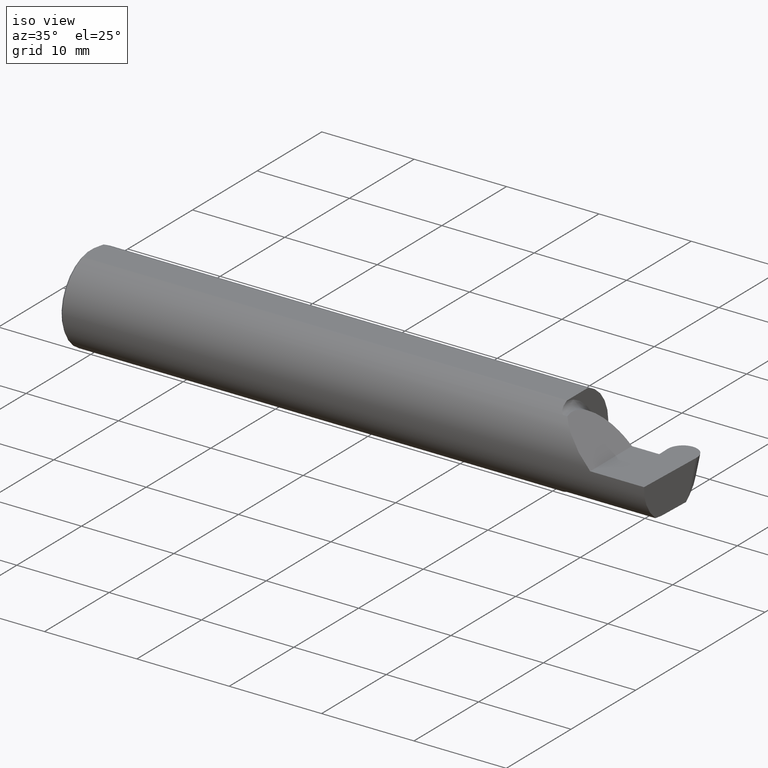
[diagram: clean part render]
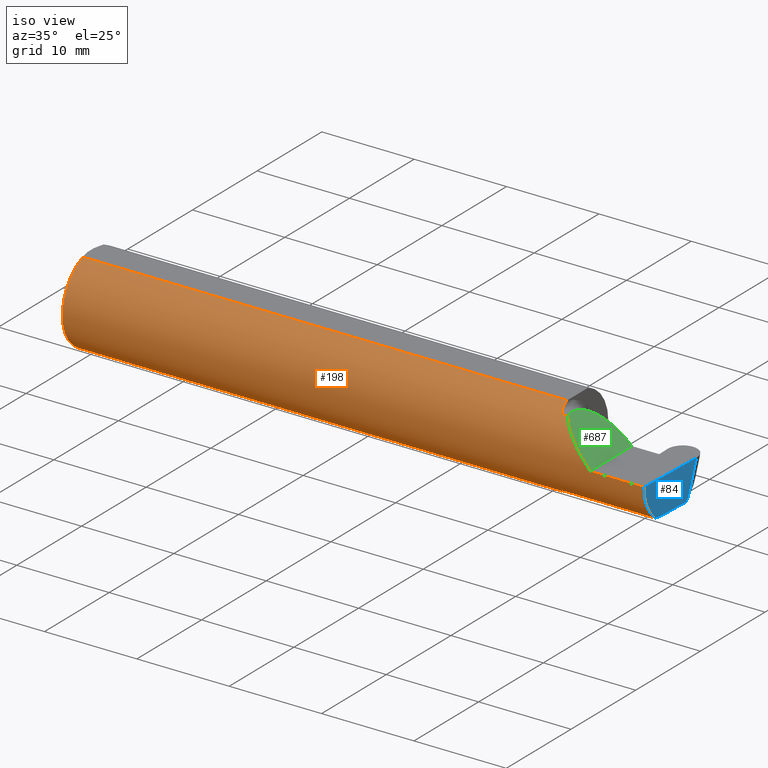
[diagram: same view with three faces highlighted in distinct colors, each labeled with its STEP entity id]
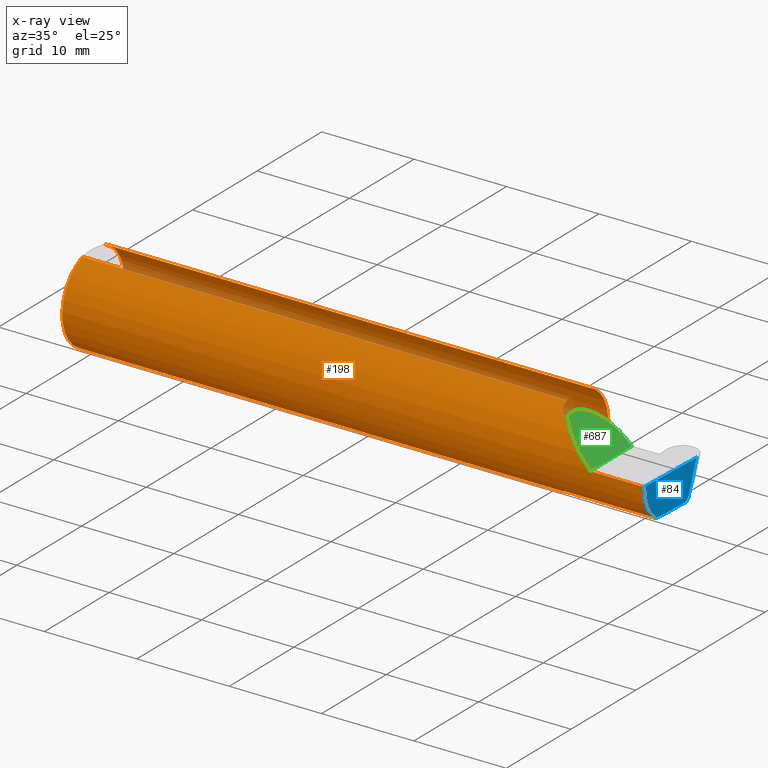
[diagram: x-ray of the same camera — body ghosted, the three highlighted faces saturated]
A machine part, iso view with three faces highlighted in distinct colors.
The next image is the same camera in x-ray (body ghosted, the three faces saturated) — at least one of them is partly hidden behind the body in this view.
Their STEP definitions:

[orange] entity #198 — the highlighted cylindrical surface (partial cylindrical patch) has radius 4.7587 mm, axis along (-1, -0, -0).
#3 = VERTEX_POINT ( 'NONE', #136 ) ;
#4 = CARTESIAN_POINT ( 'NONE',  ( 0.009999999999999346217, 0.06325108694718235836, 0.1763499999999999235 ) ) ;
#7 = EDGE_CURVE ( 'NONE', #3, #99, #193, .T. ) ;
#15 = LINE ( 'NONE', #433, #77 ) ;
#23 = CYLINDRICAL_SURFACE ( 'NONE', #656, 0.1873499999999999888 ) ;
#30 = CARTESIAN_POINT ( 'NONE',  ( 2.113883229301068312, -0.1172600179964004702, 0.1461167706989303927 ) ) ;
#33 = CARTESIAN_POINT ( 'NONE',  ( 2.100000000000000089, -0.1172600179964002620, -0.1461167706989305870 ) ) ;
#35 = EDGE_CURVE ( 'NONE', #542, #491, #694, .T. ) ;
#41 = CARTESIAN_POINT ( 'NONE',  ( 2.100000000000000089, -0.1172600179964002620, -0.1461167706989305870 ) ) ;
#46 = ORIENTED_EDGE ( 'NONE', *, *, #252, .F. ) ;
#55 = EDGE_CURVE ( 'NONE', #397, #206, #553, .T. ) ;
#58 = VERTEX_POINT ( 'NONE', #548 ) ;
#62 = CARTESIAN_POINT ( 'NONE',  ( 2.237361995000000103, -0.1172600179964005118, 0.1461167706989304482 ) ) ;
#65 = DIRECTION ( 'NONE',  ( 0.000000000000000000, 1.000000000000000000, 0.000000000000000000 ) ) ;
#67 = CARTESIAN_POINT ( 'NONE',  ( 2.083475602106621860, -0.1064978748893402188, 0.1542035505680386387 ) ) ;
#77 = VECTOR ( 'NONE', #213, 39.37007874015748143 ) ;
#81 = ORIENTED_EDGE ( 'NONE', *, *, #107, .F. ) ;
#86 = EDGE_CURVE ( 'NONE', #106, #491, #15, .T. ) ;
#95 = VERTEX_POINT ( 'NONE', #278 ) ;
#99 = VERTEX_POINT ( 'NONE', #390 ) ;
#106 = VERTEX_POINT ( 'NONE', #171 ) ;
#107 = EDGE_CURVE ( 'NONE', #391, #58, #161, .T. ) ;
#110 = CARTESIAN_POINT ( 'NONE',  ( 3.749399456654646757E-32, -0.1873499999999999610, 3.061616997868383634E-16 ) ) ;
#111 = ORIENTED_EDGE ( 'NONE', *, *, #7, .T. ) ;
#113 = DIRECTION ( 'NONE',  ( 1.000000000000000000, 3.417954624266474541E-16, 0.000000000000000000 ) ) ;
#115 = ORIENTED_EDGE ( 'NONE', *, *, #416, .F. ) ;
#119 = DIRECTION ( 'NONE',  ( 1.000000000000000000, 3.417954624266474541E-16, 0.000000000000000000 ) ) ;
#120 = CARTESIAN_POINT ( 'NONE',  ( 2.075000000000000178, -0.06851976604679038685, -0.1743704796142199753 ) ) ;
#123 = AXIS2_PLACEMENT_3D ( 'NONE', #589, #113, #65 ) ;
#129 = CARTESIAN_POINT ( 'NONE',  ( 2.090028532764138802, -0.1137241120808232947, -0.1488947809299406011 ) ) ;
#133 = CARTESIAN_POINT ( 'NONE',  ( 2.150065971957464850, -0.1623470442677541759, 0.1099340280425337851 ) ) ;
#136 = CARTESIAN_POINT ( 'NONE',  ( 2.260000000000000231, -0.1873499999999999888, 2.939152317953647352E-17 ) ) ;
#141 = CARTESIAN_POINT ( 'NONE',  ( 2.488225324098681579, -0.1873500000000000165, -0.05781030015605125721 ) ) ;
#158 = ORIENTED_EDGE ( 'NONE', *, *, #306, .T. ) ;
#159 = CARTESIAN_POINT ( 'NONE',  ( 2.075000000000000178, -0.06851976604679038685, 0.1743704796142199753 ) ) ;
#161 = B_SPLINE_CURVE_WITH_KNOTS ( 'NONE', 3,
 ( #671, #338, #223, #599, #544, #231, #67, #441, #180, #429, #484, #382 ),
 .UNSPECIFIED., .F., .F.,
 ( 4, 2, 2, 2, 2, 4 ),
 ( 4.423516731081017750E-05, 0.0004615475116586720055, 0.0008788598560065338404, 0.001296172200354395784, 0.001504828372528326701, 0.001713484544702257618 ),
 .UNSPECIFIED. ) ;
#171 = CARTESIAN_POINT ( 'NONE',  ( 2.075000000000000178, 0.06325108694718235836, 0.1763499999999999235 ) ) ;
#180 = CARTESIAN_POINT ( 'NONE',  ( 2.090004157323697598, -0.1137044537483313106, 0.1489098419202430912 ) ) ;
#181 = ORIENTED_EDGE ( 'NONE', *, *, #568, .F. ) ;
#183 = FACE_OUTER_BOUND ( 'NONE', #498, .T. ) ;
#189 = CARTESIAN_POINT ( 'NONE',  ( 0.009999999999999346217, -0.06325108694718235836, 0.1763499999999999235 ) ) ;
#193 =( BOUNDED_CURVE ( )  B_SPLINE_CURVE ( 3, ( #400, #615, #133, #30 ),
 .UNSPECIFIED., .F., .F. ) 
 B_SPLINE_CURVE_WITH_KNOTS ( ( 4, 4 ),
 ( 4.712388980384688786, 5.606916381293137519 ),
 .UNSPECIFIED. ) 
 CURVE ( )  GEOMETRIC_REPRESENTATION_ITEM ( )  RATIONAL_B_SPLINE_CURVE ( ( 1.000000000000000000, 0.9344226172588800949, 0.9344226172588800949, 1.000000000000000000 ) ) 
 REPRESENTATION_ITEM ( '' )  );
#198 = ADVANCED_FACE ( 'NONE', ( #183 ), #23, .T. ) ;
#205 = DIRECTION ( 'NONE',  ( -1.000000000000000000, -3.417954624266474541E-16, -0.000000000000000000 ) ) ;
#206 = VERTEX_POINT ( 'NONE', #511 ) ;
#213 = DIRECTION ( 'NONE',  ( -1.000000000000000000, -0.000000000000000000, -0.000000000000000000 ) ) ;
#216 = LINE ( 'NONE', #62, #557 ) ;
#223 = CARTESIAN_POINT ( 'NONE',  ( 2.075353553376444893, -0.07868116735658646499, 0.1701139256562801683 ) ) ;
#231 = CARTESIAN_POINT ( 'NONE',  ( 2.081287624083520527, -0.1021858045380142216, 0.1571187174372876694 ) ) ;
#241 = CARTESIAN_POINT ( 'NONE',  ( 0.009999999999999346217, 0.000000000000000000, 0.000000000000000000 ) ) ;
#244 = CARTESIAN_POINT ( 'NONE',  ( 2.097174967710399685, -0.1172600179964003730, -0.1461167706989306703 ) ) ;
#249 = LINE ( 'NONE', #315, #592 ) ;
#252 = EDGE_CURVE ( 'NONE', #287, #95, #401, .T. ) ;
#253 = ORIENTED_EDGE ( 'NONE', *, *, #326, .F. ) ;
#273 = DIRECTION ( 'NONE',  ( 0.000000000000000000, 0.000000000000000000, -1.000000000000000000 ) ) ;
#274 = CARTESIAN_POINT ( 'NONE',  ( 2.075358271039143609, -0.07873626113568053808, -0.1700887912276896896 ) ) ;
#278 = CARTESIAN_POINT ( 'NONE',  ( 2.075000000000000178, -0.06325108694718283020, 0.1763499999999999235 ) ) ;
#282 = ORIENTED_EDGE ( 'NONE', *, *, #594, .T. ) ;
#287 = VERTEX_POINT ( 'NONE', #189 ) ;
#289 = CARTESIAN_POINT ( 'NONE',  ( 2.081304331342287650, -0.1022198306720688427, -0.1570962426853819982 ) ) ;
#306 = EDGE_CURVE ( 'NONE', #585, #538, #667, .T. ) ;
#307 = CIRCLE ( 'NONE', #123, 0.1873499999999999888 ) ;
#313 = ORIENTED_EDGE ( 'NONE', *, *, #546, .F. ) ;
#315 = CARTESIAN_POINT ( 'NONE',  ( 2.237361995000000103, -0.1172600179964005118, -0.1461167706989304482 ) ) ;
#326 = EDGE_CURVE ( 'NONE', #585, #397, #249, .T. ) ;
#328 = AXIS2_PLACEMENT_3D ( 'NONE', #483, #492, #273 ) ;
#338 = CARTESIAN_POINT ( 'NONE',  ( 2.074999999999999289, -0.07367581953296672981, 0.1723443821957855726 ) ) ;
#342 = CARTESIAN_POINT ( 'NONE',  ( 2.083439486659306894, -0.1064616213911155906, -0.1542305641651502135 ) ) ;
#360 = CARTESIAN_POINT ( 'NONE',  ( 2.489235021721937002, -0.1873499999999999888, 0.000000000000000000 ) ) ;
#369 = ORIENTED_EDGE ( 'NONE', *, *, #35, .T. ) ;
#378 = LINE ( 'NONE', #110, #447 ) ;
#381 = CARTESIAN_POINT ( 'NONE',  ( 2.489235021721937002, -0.1873499999999999888, 0.000000000000000000 ) ) ;
#382 = CARTESIAN_POINT ( 'NONE',  ( 2.100000000000000089, -0.1172600179964003730, 0.1461167706989305592 ) ) ;
#390 = CARTESIAN_POINT ( 'NONE',  ( 2.113883229301068312, -0.1172600179964004702, 0.1461167706989303927 ) ) ;
#391 = VERTEX_POINT ( 'NONE', #159 ) ;
#392 = CARTESIAN_POINT ( 'NONE',  ( 2.489130585478359858, -0.1172600179964004286, -0.1461167706989304482 ) ) ;
#397 = VERTEX_POINT ( 'NONE', #41 ) ;
#399 = DIRECTION ( 'NONE',  ( -1.000000000000000000, -0.000000000000000000, -0.000000000000000000 ) ) ;
#400 = CARTESIAN_POINT ( 'NONE',  ( 2.260000000000000231, -0.1873499999999999888, 2.939152317953647352E-17 ) ) ;
#401 = LINE ( 'NONE', #514, #670 ) ;
#402 = DIRECTION ( 'NONE',  ( 0.000000000000000000, 0.000000000000000000, -1.000000000000000000 ) ) ;
#405 = DIRECTION ( 'NONE',  ( 0.000000000000000000, 0.000000000000000000, 1.000000000000000000 ) ) ;
#407 = DIRECTION ( 'NONE',  ( 1.000000000000000000, 0.000000000000000000, 0.000000000000000000 ) ) ;
#414 = AXIS2_PLACEMENT_3D ( 'NONE', #524, #515, #474 ) ;
#416 = EDGE_CURVE ( 'NONE', #206, #106, #467, .T. ) ;
#429 = CARTESIAN_POINT ( 'NONE',  ( 2.094481469043492528, -0.1163560528186162041, 0.1468472430636325876 ) ) ;
#433 = CARTESIAN_POINT ( 'NONE',  ( 0.000000000000000000, 0.06325108694718235836, 0.1763499999999999235 ) ) ;
#441 = CARTESIAN_POINT ( 'NONE',  ( 2.088163223656403389, -0.1119926267047273716, 0.1502091925606065526 ) ) ;
#444 = CARTESIAN_POINT ( 'NONE',  ( 2.088203859946834662, -0.1120371980050636068, -0.1501764597936561252 ) ) ;
#447 = VECTOR ( 'NONE', #547, 39.37007874015748143 ) ;
#448 = CARTESIAN_POINT ( 'NONE',  ( 0.000000000000000000, 0.000000000000000000, 0.000000000000000000 ) ) ;
#467 = CIRCLE ( 'NONE', #414, 0.1873499999999999888 ) ;
#474 = DIRECTION ( 'NONE',  ( 0.000000000000000000, 1.000000000000000000, 0.000000000000000000 ) ) ;
#480 = CARTESIAN_POINT ( 'NONE',  ( 2.074999999999999289, -0.07368234487347166684, -0.1723418180300748392 ) ) ;
#483 = CARTESIAN_POINT ( 'NONE',  ( 0.009999999999999346217, 0.000000000000000000, 0.000000000000000000 ) ) ;
#484 = CARTESIAN_POINT ( 'NONE',  ( 2.097161949849308371, -0.1172600179964057715, 0.1461167706989262571 ) ) ;
#489 = EDGE_CURVE ( 'NONE', #538, #3, #378, .T. ) ;
#491 = VERTEX_POINT ( 'NONE', #4 ) ;
#492 = DIRECTION ( 'NONE',  ( 1.000000000000000000, 0.000000000000000000, 0.000000000000000000 ) ) ;
#493 = CARTESIAN_POINT ( 'NONE',  ( 2.076843912362378752, -0.08846956905169063579, -0.1652353808078973751 ) ) ;
#498 = EDGE_LOOP ( 'NONE', ( #253, #158, #702, #111, #313, #81, #181, #46, #282, #369, #660, #115, #650 ) ) ;
#511 = CARTESIAN_POINT ( 'NONE',  ( 2.075000000000000178, -0.06851976604679038685, -0.1743704796142199753 ) ) ;
#514 = CARTESIAN_POINT ( 'NONE',  ( 0.000000000000000000, -0.06325108694718235836, 0.1763499999999999235 ) ) ;
#515 = DIRECTION ( 'NONE',  ( 1.000000000000000000, 3.417954624266474541E-16, 0.000000000000000000 ) ) ;
#524 = CARTESIAN_POINT ( 'NONE',  ( 2.075000000000000178, 0.000000000000000000, 0.000000000000000000 ) ) ;
#538 = VERTEX_POINT ( 'NONE', #381 ) ;
#542 = VERTEX_POINT ( 'NONE', #669 ) ;
#544 = CARTESIAN_POINT ( 'NONE',  ( 2.077945243422983701, -0.09312071749437392243, 0.1626553472577908221 ) ) ;
#546 = EDGE_CURVE ( 'NONE', #58, #99, #216, .T. ) ;
#547 = DIRECTION ( 'NONE',  ( -1.000000000000000000, -0.000000000000000000, -0.000000000000000000 ) ) ;
#548 = CARTESIAN_POINT ( 'NONE',  ( 2.100000000000000089, -0.1172600179964003730, 0.1461167706989305592 ) ) ;
#550 = CARTESIAN_POINT ( 'NONE',  ( 2.077960551809340473, -0.09317341542745719019, -0.1626248379125198873 ) ) ;
#553 = B_SPLINE_CURVE_WITH_KNOTS ( 'NONE', 3,
 ( #33, #244, #683, #129, #444, #342, #289, #550, #493, #274, #480, #120 ),
 .UNSPECIFIED., .F., .F.,
 ( 4, 2, 2, 2, 2, 4 ),
 ( 1.967976973658592312E-07, 0.0002120314145722270284, 0.0004238660314470881624, 0.0008475352651967977451, 0.001271204498946507328, 0.001694873732696217236 ),
 .UNSPECIFIED. ) ;
#557 = VECTOR ( 'NONE', #119, 39.37007874015748143 ) ;
#568 = EDGE_CURVE ( 'NONE', #95, #391, #307, .T. ) ;
#585 = VERTEX_POINT ( 'NONE', #392 ) ;
#589 = CARTESIAN_POINT ( 'NONE',  ( 2.075000000000000178, 0.000000000000000000, 0.000000000000000000 ) ) ;
#590 = AXIS2_PLACEMENT_3D ( 'NONE', #241, #407, #402 ) ;
#592 = VECTOR ( 'NONE', #205, 39.37007874015748143 ) ;
#594 = EDGE_CURVE ( 'NONE', #287, #542, #696, .T. ) ;
#599 = CARTESIAN_POINT ( 'NONE',  ( 2.076829077486399555, -0.08839624499054617168, 0.1652742498708038577 ) ) ;
#615 = CARTESIAN_POINT ( 'NONE',  ( 2.202189699843947857, -0.1873500000000000443, 0.05781030015605105599 ) ) ;
#616 = DIRECTION ( 'NONE',  ( 1.000000000000000000, 0.000000000000000000, 0.000000000000000000 ) ) ;
#628 = CARTESIAN_POINT ( 'NONE',  ( 2.488188068920404561, -0.1623470442677540926, -0.1099340280425339517 ) ) ;
#650 = ORIENTED_EDGE ( 'NONE', *, *, #55, .F. ) ;
#656 = AXIS2_PLACEMENT_3D ( 'NONE', #448, #399, #405 ) ;
#660 = ORIENTED_EDGE ( 'NONE', *, *, #86, .F. ) ;
#667 =( BOUNDED_CURVE ( )  B_SPLINE_CURVE ( 3, ( #686, #628, #141, #360 ),
 .UNSPECIFIED., .F., .F. ) 
 B_SPLINE_CURVE_WITH_KNOTS ( ( 4, 4 ),
 ( 5.852427379562171517, 6.746954780470620250 ),
 .UNSPECIFIED. ) 
 CURVE ( )  GEOMETRIC_REPRESENTATION_ITEM ( )  RATIONAL_B_SPLINE_CURVE ( ( 1.000000000000000000, 0.9344226172588800949, 0.9344226172588800949, 1.000000000000000000 ) ) 
 REPRESENTATION_ITEM ( '' )  );
#669 = CARTESIAN_POINT ( 'NONE',  ( 0.009999999999999346217, 0.000000000000000000, -0.1873499999999999888 ) ) ;
#671 = CARTESIAN_POINT ( 'NONE',  ( 2.075000000000000178, -0.06851976604679038685, 0.1743704796142199753 ) ) ;
#670 = VECTOR ( 'NONE', #616, 39.37007874015748143 ) ;
#683 = CARTESIAN_POINT ( 'NONE',  ( 2.094511795768554840, -0.1163687266324232167, -0.1468371510166791294 ) ) ;
#686 = CARTESIAN_POINT ( 'NONE',  ( 2.489130585478359858, -0.1172600179964004286, -0.1461167706989304482 ) ) ;
#694 = CIRCLE ( 'NONE', #590, 0.1873499999999999888 ) ;
#696 = CIRCLE ( 'NONE', #328, 0.1873499999999999888 ) ;
#702 = ORIENTED_EDGE ( 'NONE', *, *, #489, .T. ) ;

[blue] entity #84 — the highlighted planar face has unit normal (-0.9992, 0.0349, 0.0175).
#14 = CARTESIAN_POINT ( 'NONE',  ( 2.490246926064548560, -0.08334999999999932740, -0.1500000000000000500 ) ) ;
#22 = VECTOR ( 'NONE', #451, 39.37007874015748143 ) ;
#29 = CARTESIAN_POINT ( 'NONE',  ( 2.490542817754151539, -0.07487677063221309659, -0.1500000000000000500 ) ) ;
#38 = VECTOR ( 'NONE', #243, 39.37007874015748143 ) ;
#45 = VECTOR ( 'NONE', #385, 39.37007874015748143 ) ;
#83 = LINE ( 'NONE', #301, #38 ) ;
#84 = ADVANCED_FACE ( 'NONE', ( #396 ), #227, .F. ) ;
#98 = CARTESIAN_POINT ( 'NONE',  ( 2.490246926064548560, -0.08334999999999932740, -0.1500000000000000500 ) ) ;
#121 = ORIENTED_EDGE ( 'NONE', *, *, #358, .T. ) ;
#141 = CARTESIAN_POINT ( 'NONE',  ( 2.488225324098681579, -0.1873500000000000165, -0.05781030015605125721 ) ) ;
#156 = VERTEX_POINT ( 'NONE', #281 ) ;
#191 = LINE ( 'NONE', #29, #22 ) ;
#227 = PLANE ( 'NONE',  #681 ) ;
#243 = DIRECTION ( 'NONE',  ( -0.03701744261649830836, -0.7066221440565397804, -0.7066221440565479961 ) ) ;
#251 = EDGE_CURVE ( 'NONE', #156, #600, #191, .T. ) ;
#262 = CARTESIAN_POINT ( 'NONE',  ( 2.489474166416077328, -0.1061291577212405274, -0.1486999626928447726 ) ) ;
#265 = CARTESIAN_POINT ( 'NONE',  ( 2.495889335989002866, 0.07225145685232282899, -0.1380515946908279223 ) ) ;
#268 = LINE ( 'NONE', #422, #434 ) ;
#276 = EDGE_CURVE ( 'NONE', #394, #156, #83, .T. ) ;
#277 = LINE ( 'NONE', #533, #45 ) ;
#279 = VERTEX_POINT ( 'NONE', #680 ) ;
#281 = CARTESIAN_POINT ( 'NONE',  ( 2.495263401164272477, 0.06030305154315081240, -0.1500000000000000500 ) ) ;
#301 = CARTESIAN_POINT ( 'NONE',  ( 2.497703355296062355, 0.1068790843033551180, -0.1034239672397952309 ) ) ;
#306 = EDGE_CURVE ( 'NONE', #585, #538, #667, .T. ) ;
#311 = CARTESIAN_POINT ( 'NONE',  ( 2.489130585478359858, -0.1172600179964004286, -0.1461167706989304482 ) ) ;
#357 = EDGE_LOOP ( 'NONE', ( #442, #475, #472, #425, #121, #571 ) ) ;
#358 = EDGE_CURVE ( 'NONE', #585, #600, #504, .T. ) ;
#360 = CARTESIAN_POINT ( 'NONE',  ( 2.489235021721937002, -0.1873499999999999888, 0.000000000000000000 ) ) ;
#381 = CARTESIAN_POINT ( 'NONE',  ( 2.489235021721937002, -0.1873499999999999888, 0.000000000000000000 ) ) ;
#385 = DIRECTION ( 'NONE',  ( 0.02739170151060026093, 0.3089010440752013587, 0.9506996579664918068 ) ) ;
#392 = CARTESIAN_POINT ( 'NONE',  ( 2.489130585478359858, -0.1172600179964004286, -0.1461167706989304482 ) ) ;
#394 = VERTEX_POINT ( 'NONE', #265 ) ;
#396 = FACE_OUTER_BOUND ( 'NONE', #357, .T. ) ;
#422 = CARTESIAN_POINT ( 'NONE',  ( 2.499961842619776053, 0.1198259601510516942, 0.000000000000000000 ) ) ;
#424 = EDGE_CURVE ( 'NONE', #279, #538, #268, .T. ) ;
#425 = ORIENTED_EDGE ( 'NONE', *, *, #306, .F. ) ;
#434 = VECTOR ( 'NONE', #647, 39.37007874015748854 ) ;
#442 = ORIENTED_EDGE ( 'NONE', *, *, #276, .F. ) ;
#451 = DIRECTION ( 'NONE',  ( -0.03489949670249442581, -0.9993908270190959842, 0.000000000000000000 ) ) ;
#472 = ORIENTED_EDGE ( 'NONE', *, *, #424, .T. ) ;
#475 = ORIENTED_EDGE ( 'NONE', *, *, #578, .T. ) ;
#504 =( BOUNDED_CURVE ( )  B_SPLINE_CURVE ( 3, ( #311, #262, #576, #98 ),
 .UNSPECIFIED., .F., .F. ) 
 B_SPLINE_CURVE_WITH_KNOTS ( ( 4, 4 ),
 ( 0.8789888184544242256, 1.107026853503871644 ),
 .UNSPECIFIED. ) 
 CURVE ( )  GEOMETRIC_REPRESENTATION_ITEM ( )  RATIONAL_B_SPLINE_CURVE ( ( 1.000000000000000000, 0.9956712472009928705, 0.9956712472009928705, 1.000000000000000000 ) ) 
 REPRESENTATION_ITEM ( '' )  );
#533 = CARTESIAN_POINT ( 'NONE',  ( 2.499889975361145655, 0.1173673719240849456, 0.0008009143901308216464 ) ) ;
#537 = DIRECTION ( 'NONE',  ( -0.03489949670249442581, -0.9993908270190959842, 0.000000000000000000 ) ) ;
#538 = VERTEX_POINT ( 'NONE', #381 ) ;
#571 = ORIENTED_EDGE ( 'NONE', *, *, #251, .F. ) ;
#576 = CARTESIAN_POINT ( 'NONE',  ( 2.489847897735300908, -0.09477667630339363380, -0.1500000000000001332 ) ) ;
#578 = EDGE_CURVE ( 'NONE', #394, #279, #277, .T. ) ;
#585 = VERTEX_POINT ( 'NONE', #392 ) ;
#600 = VERTEX_POINT ( 'NONE', #14 ) ;
#609 = DIRECTION ( 'NONE',  ( -0.9992386149554828290, 0.03489418134010712630, 0.01745240643728358798 ) ) ;
#628 = CARTESIAN_POINT ( 'NONE',  ( 2.488188068920404561, -0.1623470442677540926, -0.1099340280425339517 ) ) ;
#647 = DIRECTION ( 'NONE',  ( -0.03489949670249442581, -0.9993908270190959842, 0.000000000000000000 ) ) ;
#662 = CARTESIAN_POINT ( 'NONE',  ( 2.499961842619776053, 0.1198259601510516942, 0.000000000000000000 ) ) ;
#667 =( BOUNDED_CURVE ( )  B_SPLINE_CURVE ( 3, ( #686, #628, #141, #360 ),
 .UNSPECIFIED., .F., .F. ) 
 B_SPLINE_CURVE_WITH_KNOTS ( ( 4, 4 ),
 ( 5.852427379562171517, 6.746954780470620250 ),
 .UNSPECIFIED. ) 
 CURVE ( )  GEOMETRIC_REPRESENTATION_ITEM ( )  RATIONAL_B_SPLINE_CURVE ( ( 1.000000000000000000, 0.9344226172588800949, 0.9344226172588800949, 1.000000000000000000 ) ) 
 REPRESENTATION_ITEM ( '' )  );
#680 = CARTESIAN_POINT ( 'NONE',  ( 2.499866899295296374, 0.1171071390637350718, 0.000000000000000000 ) ) ;
#681 = AXIS2_PLACEMENT_3D ( 'NONE', #662, #609, #537 ) ;
#686 = CARTESIAN_POINT ( 'NONE',  ( 2.489130585478359858, -0.1172600179964004286, -0.1461167706989304482 ) ) ;

[green] entity #687 — the highlighted planar face has unit normal (-0.7071, 0, -0.7071).
#3 = VERTEX_POINT ( 'NONE', #136 ) ;
#7 = EDGE_CURVE ( 'NONE', #3, #99, #193, .T. ) ;
#30 = CARTESIAN_POINT ( 'NONE',  ( 2.113883229301068312, -0.1172600179964004702, 0.1461167706989303927 ) ) ;
#48 = CARTESIAN_POINT ( 'NONE',  ( 2.113883229301068312, -0.1172600179964004702, 0.1461167706989303927 ) ) ;
#99 = VERTEX_POINT ( 'NONE', #390 ) ;
#127 = CARTESIAN_POINT ( 'NONE',  ( 2.260000000000000231, 0.06665000000000001479, 5.204748896376252548E-17 ) ) ;
#133 = CARTESIAN_POINT ( 'NONE',  ( 2.150065971957464850, -0.1623470442677541759, 0.1099340280425337851 ) ) ;
#136 = CARTESIAN_POINT ( 'NONE',  ( 2.260000000000000231, -0.1873499999999999888, 2.939152317953647352E-17 ) ) ;
#151 = ORIENTED_EDGE ( 'NONE', *, *, #7, .F. ) ;
#172 = ORIENTED_EDGE ( 'NONE', *, *, #228, .T. ) ;
#179 = DIRECTION ( 'NONE',  ( -0.7071067811865441310, 0.000000000000000000, -0.7071067811865510144 ) ) ;
#193 =( BOUNDED_CURVE ( )  B_SPLINE_CURVE ( 3, ( #400, #615, #133, #30 ),
 .UNSPECIFIED., .F., .F. ) 
 B_SPLINE_CURVE_WITH_KNOTS ( ( 4, 4 ),
 ( 4.712388980384688786, 5.606916381293137519 ),
 .UNSPECIFIED. ) 
 CURVE ( )  GEOMETRIC_REPRESENTATION_ITEM ( )  RATIONAL_B_SPLINE_CURVE ( ( 1.000000000000000000, 0.9344226172588800949, 0.9344226172588800949, 1.000000000000000000 ) ) 
 REPRESENTATION_ITEM ( '' )  );
#203 = CARTESIAN_POINT ( 'NONE',  ( 2.260000000000000231, 0.06665000000000001479, 5.204748896376252548E-17 ) ) ;
#228 = EDGE_CURVE ( 'NONE', #3, #641, #554, .T. ) ;
#257 = CARTESIAN_POINT ( 'NONE',  ( 2.155331797197863164, 0.06664999999999995928, 0.1046682028021360261 ) ) ;
#332 = ORIENTED_EDGE ( 'NONE', *, *, #398, .F. ) ;
#344 = FACE_OUTER_BOUND ( 'NONE', #611, .T. ) ;
#350 = VECTOR ( 'NONE', #454, 39.37007874015748143 ) ;
#373 = AXIS2_PLACEMENT_3D ( 'NONE', #458, #179, #453 ) ;
#390 = CARTESIAN_POINT ( 'NONE',  ( 2.113883229301068312, -0.1172600179964004702, 0.1461167706989303927 ) ) ;
#398 = EDGE_CURVE ( 'NONE', #99, #641, #684, .T. ) ;
#400 = CARTESIAN_POINT ( 'NONE',  ( 2.260000000000000231, -0.1873499999999999888, 2.939152317953647352E-17 ) ) ;
#404 = PLANE ( 'NONE',  #373 ) ;
#417 = CARTESIAN_POINT ( 'NONE',  ( 2.090221225029925911, -0.01530148607434163137, 0.1697787749700725712 ) ) ;
#453 = DIRECTION ( 'NONE',  ( -0.7071067811865509034, 0.000000000000000000, 0.7071067811865440200 ) ) ;
#454 = DIRECTION ( 'NONE',  ( -0.000000000000000000, 1.000000000000000000, -0.000000000000000000 ) ) ;
#458 = CARTESIAN_POINT ( 'NONE',  ( 2.260000000000000231, -0.2500000000000000555, 2.939152317953647352E-17 ) ) ;
#503 = CARTESIAN_POINT ( 'NONE',  ( 2.260000000000000231, -0.2500000000000000555, 2.939152317953647352E-17 ) ) ;
#554 = LINE ( 'NONE', #503, #350 ) ;
#611 = EDGE_LOOP ( 'NONE', ( #332, #151, #172 ) ) ;
#615 = CARTESIAN_POINT ( 'NONE',  ( 2.202189699843947857, -0.1873500000000000443, 0.05781030015605105599 ) ) ;
#641 = VERTEX_POINT ( 'NONE', #127 ) ;
#684 =( BOUNDED_CURVE ( )  B_SPLINE_CURVE ( 3, ( #48, #417, #257, #203 ),
 .UNSPECIFIED., .F., .F. ) 
 B_SPLINE_CURVE_WITH_KNOTS ( ( 4, 4 ),
 ( 6.055147272130144032, 7.853981633974482790 ),
 .UNSPECIFIED. ) 
 CURVE ( )  GEOMETRIC_REPRESENTATION_ITEM ( )  RATIONAL_B_SPLINE_CURVE ( ( 1.000000000000000000, 0.7480442670255272875, 0.7480442670255272875, 1.000000000000000000 ) ) 
 REPRESENTATION_ITEM ( '' )  );
#687 = ADVANCED_FACE ( 'NONE', ( #344 ), #404, .F. ) ;